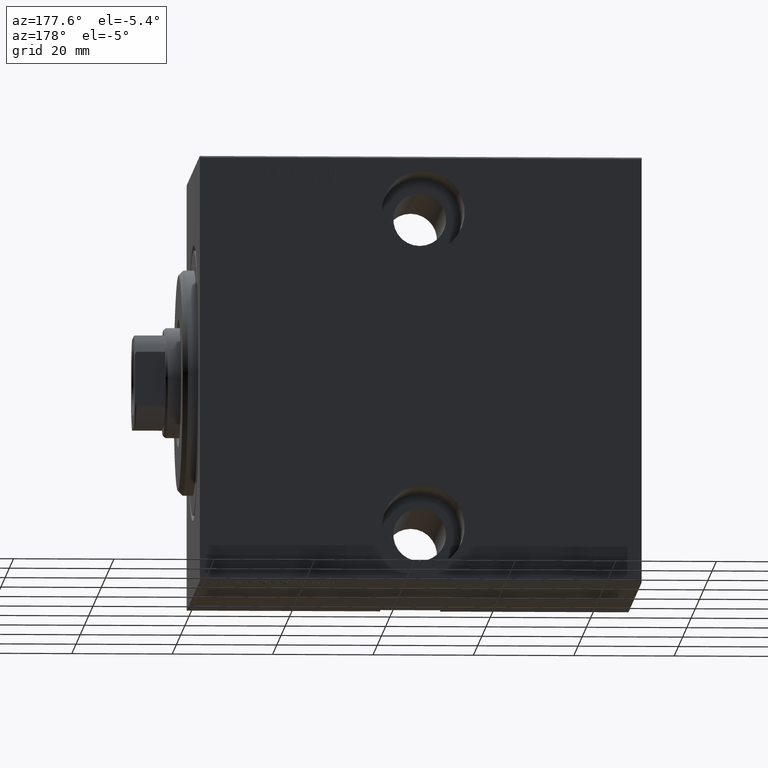
[diagram: clean part render]
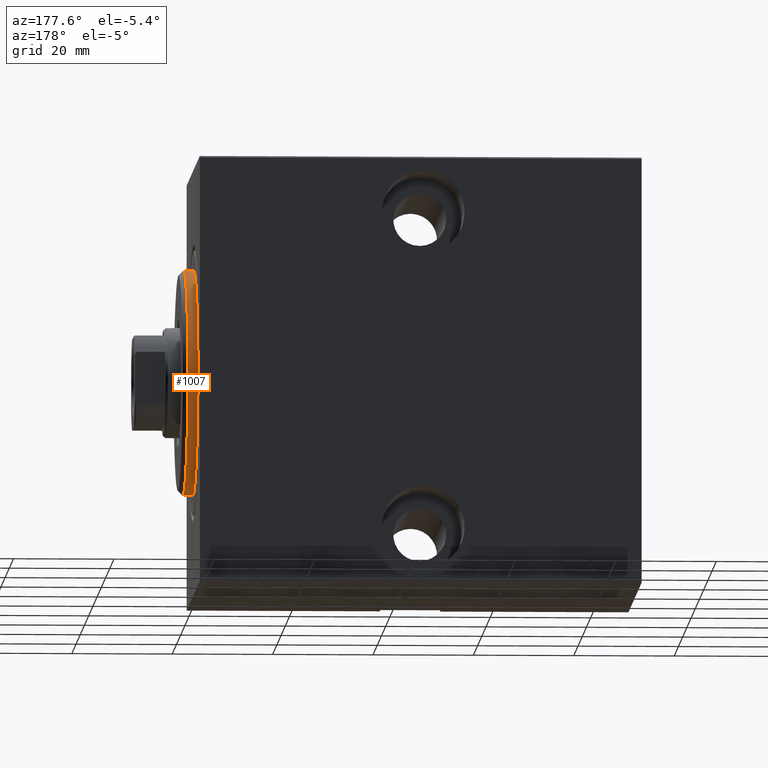
[diagram: same view with one face highlighted and labeled with its STEP entity id]
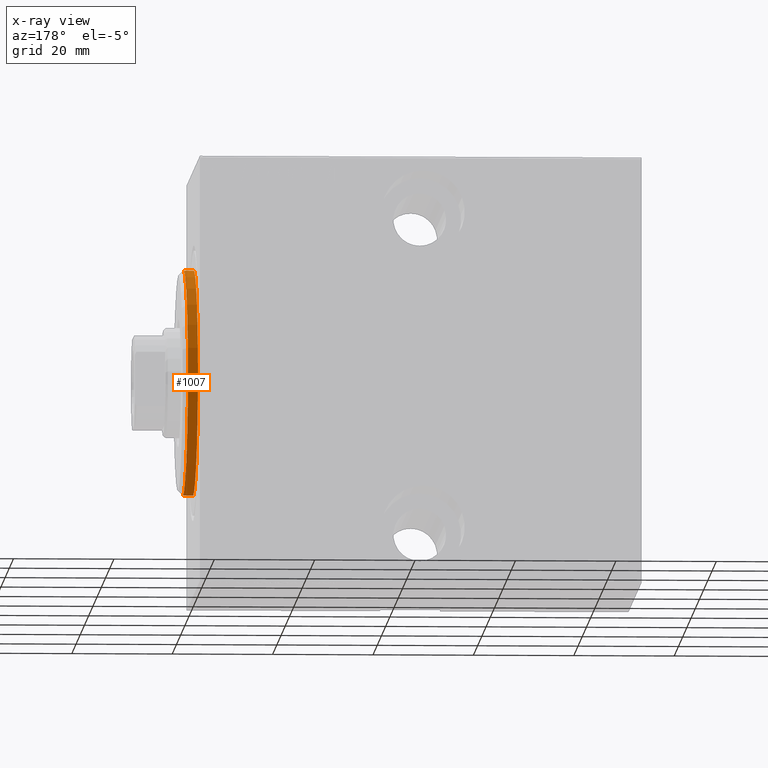
[diagram: x-ray of the same camera — body ghosted, the highlighted face saturated]
A machine part, auxiliary view. The second image highlights one B-rep face of the part: STEP entity #1007.
The next image is the same camera in x-ray: the body ghosted, the highlighted face saturated — about 0% of this face is hidden behind the body in this view.
In plain terms, the highlighted cylindrical surface (partial cylindrical patch) has radius 22.5 mm, axis along (-1, -0, -0).
Its self-contained STEP definition (entity closure, byte-faithful):
#53 = DIRECTION ( 'NONE',  ( -1.000000000000000000, 0.000000000000000000, 0.000000000000000000 ) ) ;
#1007 = ADVANCED_FACE ( 'NONE', ( #23910 ), #30610, .T. ) ;
#1335 = CIRCLE ( 'NONE', #12442, 22.50000000000000355 ) ;
#5270 = DIRECTION ( 'NONE',  ( 0.000000000000000000, 0.000000000000000000, -1.000000000000000000 ) ) ;
#6571 = LINE ( 'NONE', #33458, #39423 ) ;
#7400 = DIRECTION ( 'NONE',  ( 0.000000000000000000, 0.000000000000000000, 1.000000000000000000 ) ) ;
#7606 = CARTESIAN_POINT ( 'NONE',  ( 0.000000000000000000, 2.755455298081545172E-15, -22.50000000000000355 ) ) ;
#8108 = DIRECTION ( 'NONE',  ( 1.000000000000000000, -0.000000000000000000, 0.000000000000000000 ) ) ;
#8592 = VERTEX_POINT ( 'NONE', #7606 ) ;
#9063 = CIRCLE ( 'NONE', #25709, 22.50000000000000355 ) ;
#10981 = EDGE_CURVE ( 'NONE', #8592, #26070, #9063, .T. ) ;
#11364 = EDGE_CURVE ( 'NONE', #12924, #8592, #11658, .T. ) ;
#11658 = LINE ( 'NONE', #15340, #25028 ) ;
#12135 = ORIENTED_EDGE ( 'NONE', *, *, #31250, .F. ) ;
#12148 = ORIENTED_EDGE ( 'NONE', *, *, #10981, .T. ) ;
#12442 = AXIS2_PLACEMENT_3D ( 'NONE', #23959, #53, #20044 ) ;
#12924 = VERTEX_POINT ( 'NONE', #32558 ) ;
#14393 = ORIENTED_EDGE ( 'NONE', *, *, #11364, .T. ) ;
#15340 = CARTESIAN_POINT ( 'NONE',  ( 3.000000000000000000, 2.755455298081545172E-15, -22.50000000000000355 ) ) ;
#19813 = DIRECTION ( 'NONE',  ( -1.000000000000000000, -0.000000000000000000, -0.000000000000000000 ) ) ;
#20044 = DIRECTION ( 'NONE',  ( 0.000000000000000000, 0.000000000000000000, -1.000000000000000000 ) ) ;
#20550 = AXIS2_PLACEMENT_3D ( 'NONE', #37093, #20645, #7400 ) ;
#20645 = DIRECTION ( 'NONE',  ( -1.000000000000000000, -0.000000000000000000, -0.000000000000000000 ) ) ;
#23910 = FACE_OUTER_BOUND ( 'NONE', #34288, .T. ) ;
#23953 = CARTESIAN_POINT ( 'NONE',  ( 2.000000000000006217, 0.000000000000000000, 22.50000000000000355 ) ) ;
#23959 = CARTESIAN_POINT ( 'NONE',  ( 2.000000000000006217, 0.000000000000000000, 0.000000000000000000 ) ) ;
#24910 = DIRECTION ( 'NONE',  ( -1.000000000000000000, -0.000000000000000000, -0.000000000000000000 ) ) ;
#25028 = VECTOR ( 'NONE', #24910, 1000.000000000000000 ) ;
#25709 = AXIS2_PLACEMENT_3D ( 'NONE', #31523, #8108, #5270 ) ;
#26070 = VERTEX_POINT ( 'NONE', #37512 ) ;
#30610 = CYLINDRICAL_SURFACE ( 'NONE', #20550, 22.50000000000000355 ) ;
#31250 = EDGE_CURVE ( 'NONE', #31363, #26070, #6571, .T. ) ;
#31363 = VERTEX_POINT ( 'NONE', #23953 ) ;
#31523 = CARTESIAN_POINT ( 'NONE',  ( 0.000000000000000000, 0.000000000000000000, 0.000000000000000000 ) ) ;
#32162 = EDGE_CURVE ( 'NONE', #31363, #12924, #1335, .T. ) ;
#32558 = CARTESIAN_POINT ( 'NONE',  ( 2.000000000000006217, 2.755455298081545172E-15, -22.50000000000000355 ) ) ;
#33458 = CARTESIAN_POINT ( 'NONE',  ( 3.000000000000000000, 0.000000000000000000, 22.50000000000000355 ) ) ;
#34288 = EDGE_LOOP ( 'NONE', ( #37188, #14393, #12148, #12135 ) ) ;
#37093 = CARTESIAN_POINT ( 'NONE',  ( 3.000000000000000000, 0.000000000000000000, 0.000000000000000000 ) ) ;
#37188 = ORIENTED_EDGE ( 'NONE', *, *, #32162, .T. ) ;
#37512 = CARTESIAN_POINT ( 'NONE',  ( 0.000000000000000000, 0.000000000000000000, 22.50000000000000355 ) ) ;
#39423 = VECTOR ( 'NONE', #19813, 1000.000000000000000 ) ;